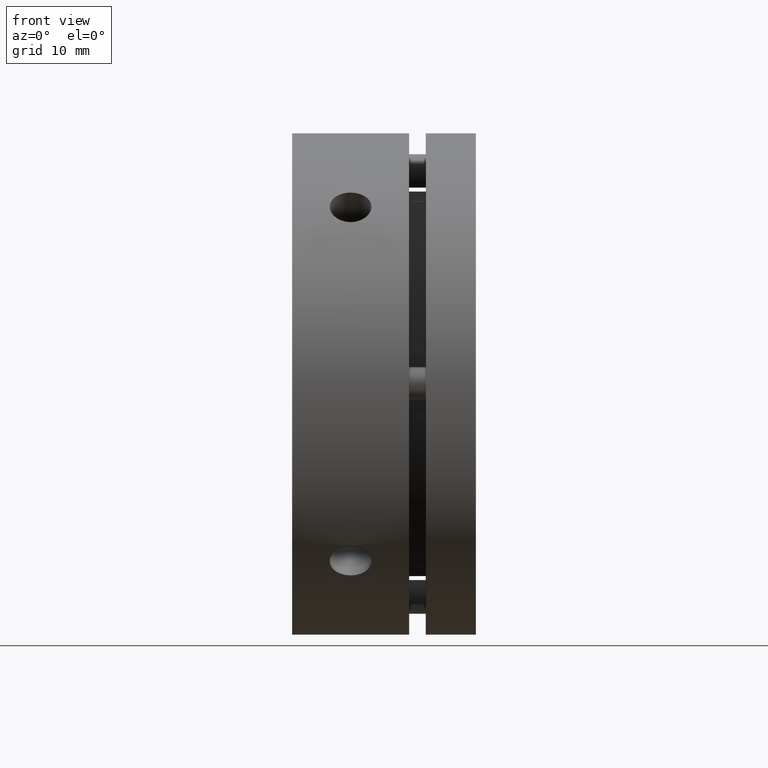
[diagram: clean part render]
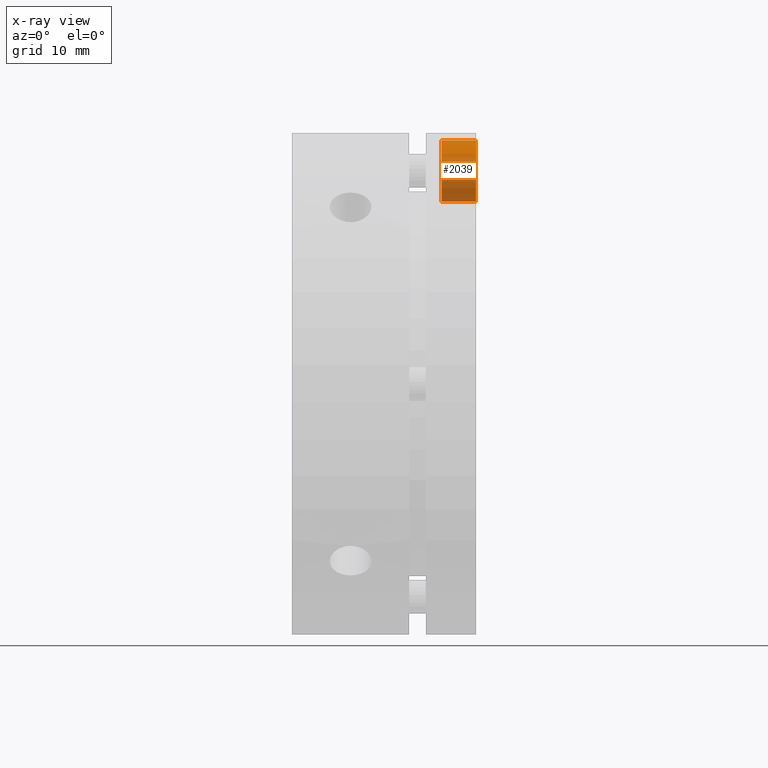
[diagram: x-ray — body ghosted, one internal face saturated and labeled with its STEP entity id]
A machine part, front view, then the same camera in x-ray: the body is ghosted and one INTERNAL B-rep face — a face not visible from any outside direction — is saturated and labeled: STEP entity #2039.
In plain terms, the highlighted cylindrical surface (edge-blend (fillet) strip) has radius 3.65 mm, axis along (1, 0, 0).
Its self-contained STEP definition (entity closure, byte-faithful):
#70 = ORIENTED_EDGE ( 'NONE', *, *, #3515, .F. ) ;
#71 = ORIENTED_EDGE ( 'NONE', *, *, #3513, .F. ) ;
#72 = ORIENTED_EDGE ( 'NONE', *, *, #3510, .T. ) ;
#73 = ORIENTED_EDGE ( 'NONE', *, *, #3509, .F. ) ;
#354 = AXIS2_PLACEMENT_3D ( 'NONE', #3290, #3288, #3286 ) ;
#747 = CARTESIAN_POINT ( 'NONE',  ( 19.94999999999999200, 4.469960816887839400E-016, 29.15000000000001300 ) ) ;
#748 = DIRECTION ( 'NONE',  ( 1.000000000000000000, 0.0000000000000000000, 0.0000000000000000000 ) ) ;
#753 = CARTESIAN_POINT ( 'NONE',  ( 17.89999999999999500, 0.0000000000000000000, 25.50000000000001100 ) ) ;
#754 = DIRECTION ( 'NONE',  ( 1.000000000000000000, 0.0000000000000000000, 0.0000000000000000000 ) ) ;
#755 = DIRECTION ( 'NONE',  ( 0.0000000000000000000, 0.0000000000000000000, -1.000000000000000000 ) ) ;
#759 = CARTESIAN_POINT ( 'NONE',  ( 19.94999999999999200, 0.0000000000000000000, 21.85000000000001200 ) ) ;
#760 = DIRECTION ( 'NONE',  ( 1.000000000000000000, 0.0000000000000000000, 0.0000000000000000000 ) ) ;
#761 = CARTESIAN_POINT ( 'NONE',  ( 21.99999999999999300, 0.0000000000000000000, 25.50000000000001100 ) ) ;
#762 = DIRECTION ( 'NONE',  ( -1.000000000000000000, -0.0000000000000000000, -0.0000000000000000000 ) ) ;
#763 = DIRECTION ( 'NONE',  ( 0.0000000000000000000, 0.0000000000000000000, -1.000000000000000000 ) ) ;
#1111 = EDGE_LOOP ( 'NONE', ( #73, #72, #71, #70 ) ) ;
#1207 = VERTEX_POINT ( 'NONE', #2608 ) ;
#1208 = VERTEX_POINT ( 'NONE', #2610 ) ;
#1210 = VERTEX_POINT ( 'NONE', #2614 ) ;
#1213 = VERTEX_POINT ( 'NONE', #2619 ) ;
#2039 = ADVANCED_FACE ( 'NONE', ( #2123 ), #2132, .F. ) ;
#2123 = FACE_OUTER_BOUND ( 'NONE', #1111, .T. ) ;
#2132 = CYLINDRICAL_SURFACE ( 'NONE', #354, 3.650000000000000400 ) ;
#2402 = CIRCLE ( 'NONE', #2729, 3.650000000000000400 ) ;
#2404 = LINE ( 'NONE', #747, #2405 ) ;
#2405 = VECTOR ( 'NONE', #748, 1000.000000000000000 ) ;
#2408 = CIRCLE ( 'NONE', #2731, 3.650000000000000400 ) ;
#2411 = LINE ( 'NONE', #759, #2412 ) ;
#2412 = VECTOR ( 'NONE', #760, 1000.000000000000000 ) ;
#2608 = CARTESIAN_POINT ( 'NONE',  ( 21.99999999999999300, 4.469960816887838400E-016, 29.15000000000001300 ) ) ;
#2610 = CARTESIAN_POINT ( 'NONE',  ( 21.99999999999999300, 0.0000000000000000000, 21.85000000000001200 ) ) ;
#2614 = CARTESIAN_POINT ( 'NONE',  ( 17.89999999999999500, 0.0000000000000000000, 21.85000000000001200 ) ) ;
#2619 = CARTESIAN_POINT ( 'NONE',  ( 17.89999999999999500, 4.469960816887838400E-016, 29.15000000000001300 ) ) ;
#2729 = AXIS2_PLACEMENT_3D ( 'NONE', #753, #754, #755 ) ;
#2731 = AXIS2_PLACEMENT_3D ( 'NONE', #761, #762, #763 ) ;
#3286 = DIRECTION ( 'NONE',  ( 0.0000000000000000000, 0.0000000000000000000, -1.000000000000000000 ) ) ;
#3288 = DIRECTION ( 'NONE',  ( 1.000000000000000000, 0.0000000000000000000, 0.0000000000000000000 ) ) ;
#3290 = CARTESIAN_POINT ( 'NONE',  ( 19.94999999999999200, 0.0000000000000000000, 25.50000000000001100 ) ) ;
#3509 = EDGE_CURVE ( 'NONE', #1213, #1210, #2402, .T. ) ;
#3510 = EDGE_CURVE ( 'NONE', #1213, #1207, #2404, .T. ) ;
#3513 = EDGE_CURVE ( 'NONE', #1208, #1207, #2408, .T. ) ;
#3515 = EDGE_CURVE ( 'NONE', #1210, #1208, #2411, .T. ) ;